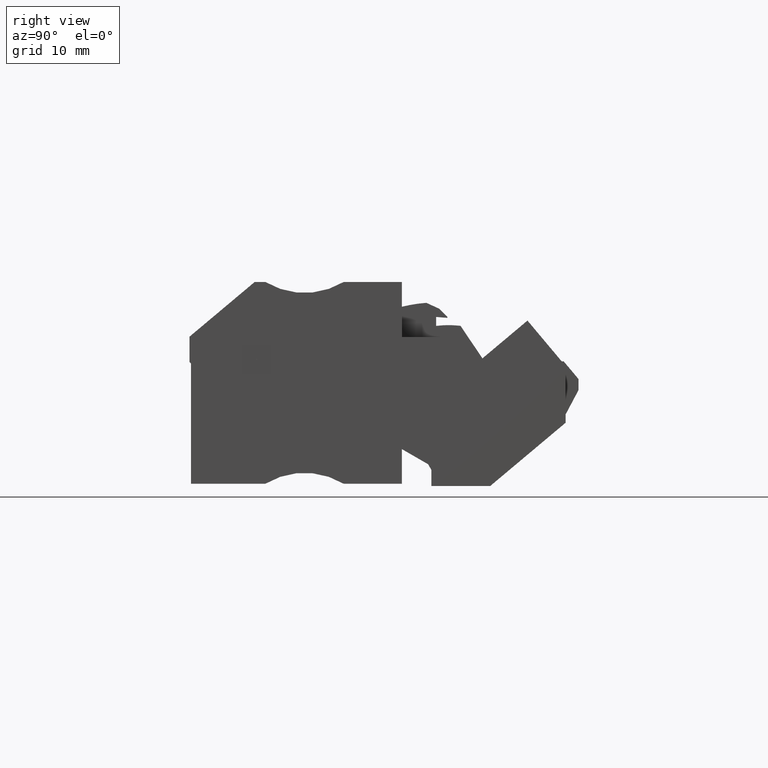
[diagram: clean part render]
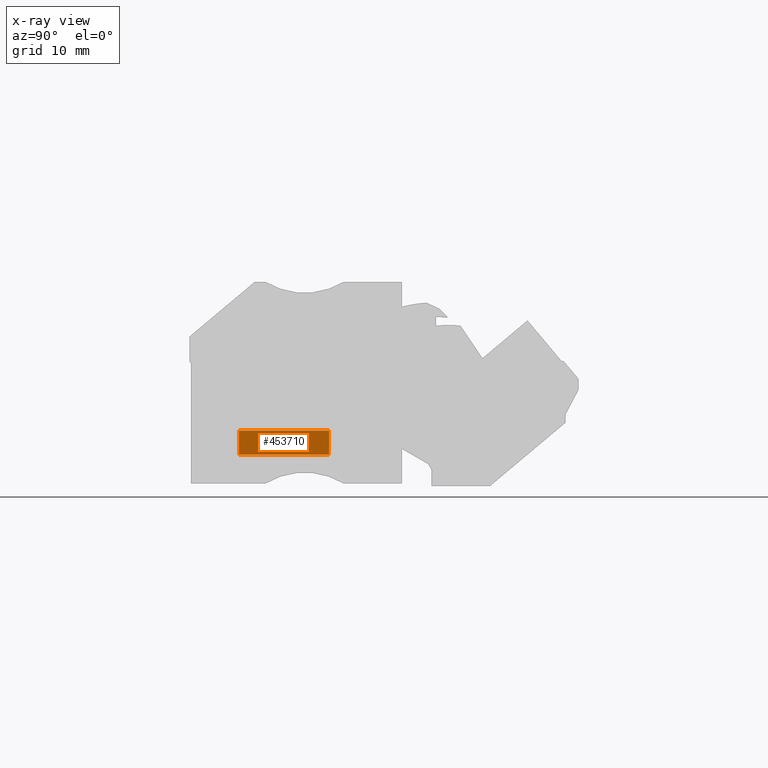
[diagram: x-ray — body ghosted, one internal face saturated and labeled with its STEP entity id]
A machine part, right view, then the same camera in x-ray: the body is ghosted and one INTERNAL B-rep face — a face not visible from any outside direction — is saturated and labeled: STEP entity #453710.
In plain terms, the highlighted planar face has unit normal (1, -0, -0).
Its self-contained STEP definition (entity closure, byte-faithful):
#412670=CARTESIAN_POINT('',(426.753158769925,677.93419528359,
135.644999978722));
#412680=VERTEX_POINT('',#412670);
#412710=CARTESIAN_POINT('',(426.753158759868,664.8186036665,
135.644999984495));
#412720=DIRECTION('',(-7.66806562690654E-10,-1.,4.40155456463372E-10));
#412730=VECTOR('',#412720,1.);
#412740=LINE('',#412710,#412730);
#412750=CARTESIAN_POINT('',(426.753158767509,674.784195283451,
135.644999980109));
#412760=VERTEX_POINT('',#412750);
#412770=EDGE_CURVE('',#412680,#412760,#412740,.T.);
#453410=CARTESIAN_POINT('',(426.758320914339,678.061723284363,
135.644999978666));
#453420=DIRECTION('',(-5.49568035572053E-11,4.40155432178432E-10,1.));
#453430=DIRECTION('',(7.6680634064605E-10,1.,-4.40155432136291E-10));
#453440=AXIS2_PLACEMENT_3D('',#453410,#453420,#453430);
#453450=PLANE('',#453440);
#453460=ORIENTED_EDGE('',*,*,#412770,.T.);
#453470=CARTESIAN_POINT('',(428.969054923832,677.934195281904,
135.644999978844));
#453480=DIRECTION('',(-1.,7.60766061258499E-10,-5.4956829162474E-11));
#453490=VECTOR('',#453480,1.);
#453500=LINE('',#453470,#453490);
#453510=CARTESIAN_POINT('',(438.648616175407,677.934195274541,
135.644999979376));
#453520=VERTEX_POINT('',#453510);
#453530=EDGE_CURVE('',#453520,#412680,#453500,.T.);
#453540=ORIENTED_EDGE('',*,*,#453530,.T.);
#453550=CARTESIAN_POINT('',(438.648616176089,676.714061050018,
135.644999979913));
#453560=DIRECTION('',(-5.59150170609505E-10,1.,-4.40155484438544E-10));
#453570=VECTOR('',#453560,1.);
#453580=LINE('',#453550,#453570);
#453590=CARTESIAN_POINT('',(438.648616177168,674.784195274264,
135.644999980762));
#453600=VERTEX_POINT('',#453590);
#453610=EDGE_CURVE('',#453600,#453520,#453580,.T.);
#453620=ORIENTED_EDGE('',*,*,#453610,.T.);
#453630=CARTESIAN_POINT('',(432.119054917769,674.784195279307,
135.644999980404));
#453640=DIRECTION('',(1.,-7.72330088771844E-10,5.49568291694808E-11));
#453650=VECTOR('',#453640,1.);
#453660=LINE('',#453630,#453650);
#453670=EDGE_CURVE('',#412760,#453600,#453660,.T.);
#453680=ORIENTED_EDGE('',*,*,#453670,.T.);
#453690=EDGE_LOOP('',(#453680,#453620,#453540,#453460));
#453700=FACE_OUTER_BOUND('',#453690,.T.);
#453710=ADVANCED_FACE('',(#453700),#453450,.T.);